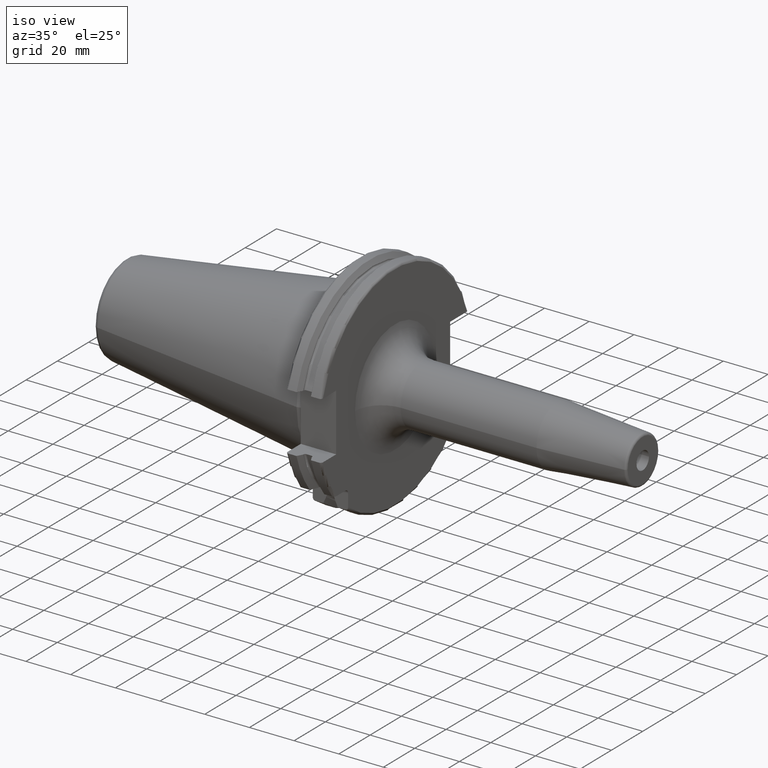
[diagram: clean part render]
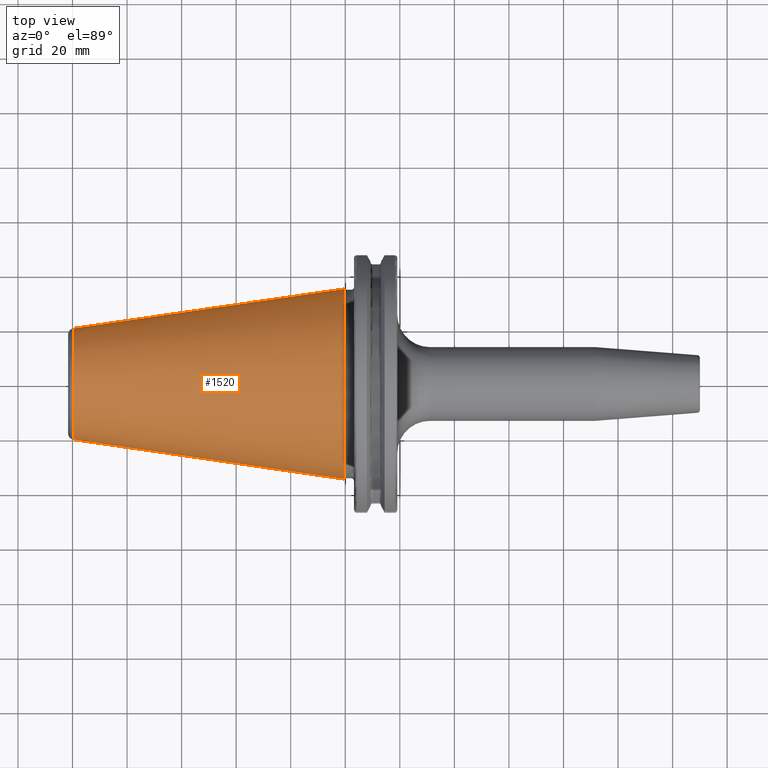
[diagram: tour spotlight — one face highlighted and labeled with its STEP entity id]
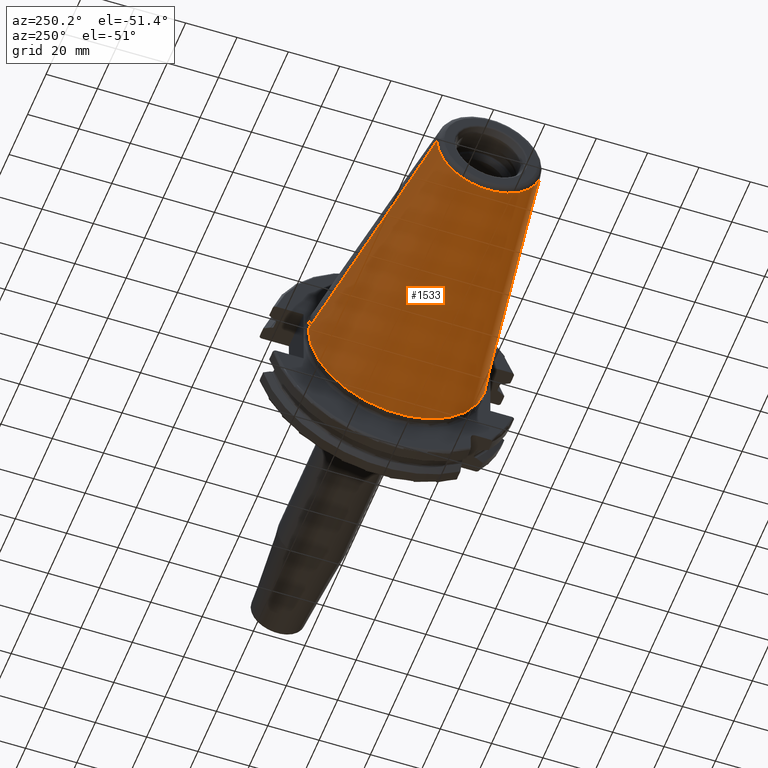
[diagram: tour spotlight — one face highlighted and labeled with its STEP entity id]
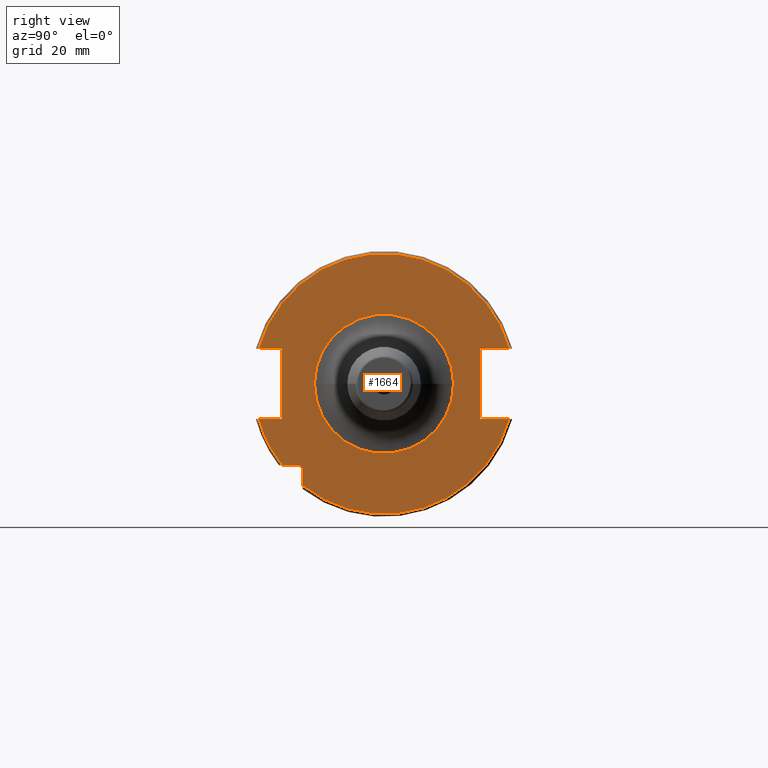
[diagram: tour spotlight — one face highlighted and labeled with its STEP entity id]
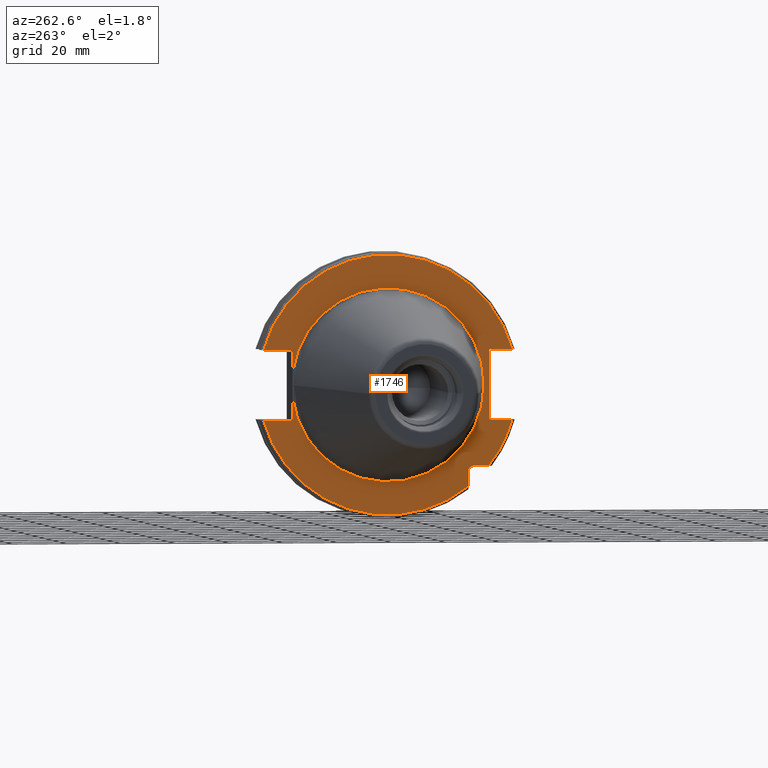
[diagram: tour spotlight — one face highlighted and labeled with its STEP entity id]
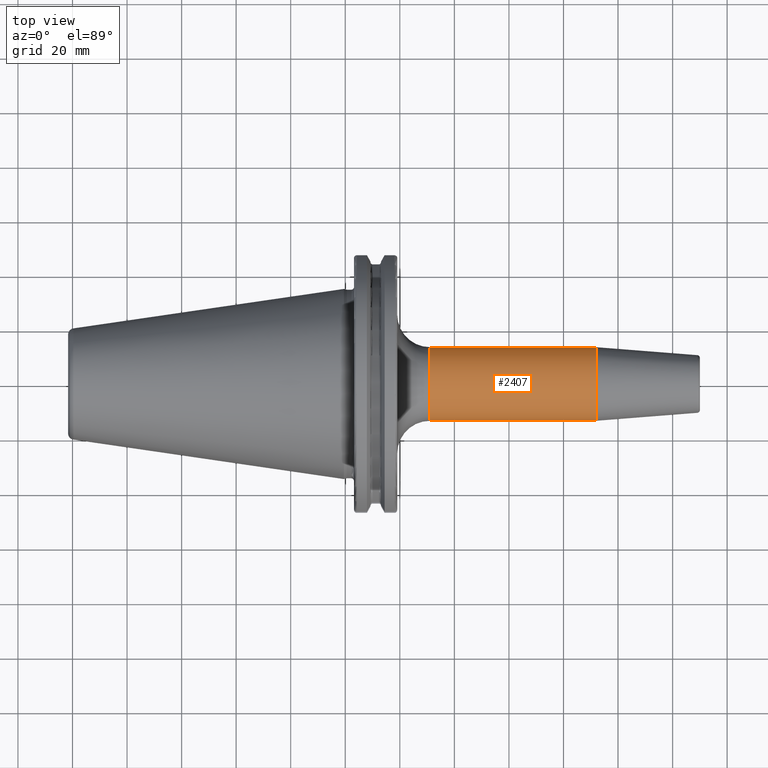
[diagram: tour spotlight — one face highlighted and labeled with its STEP entity id]
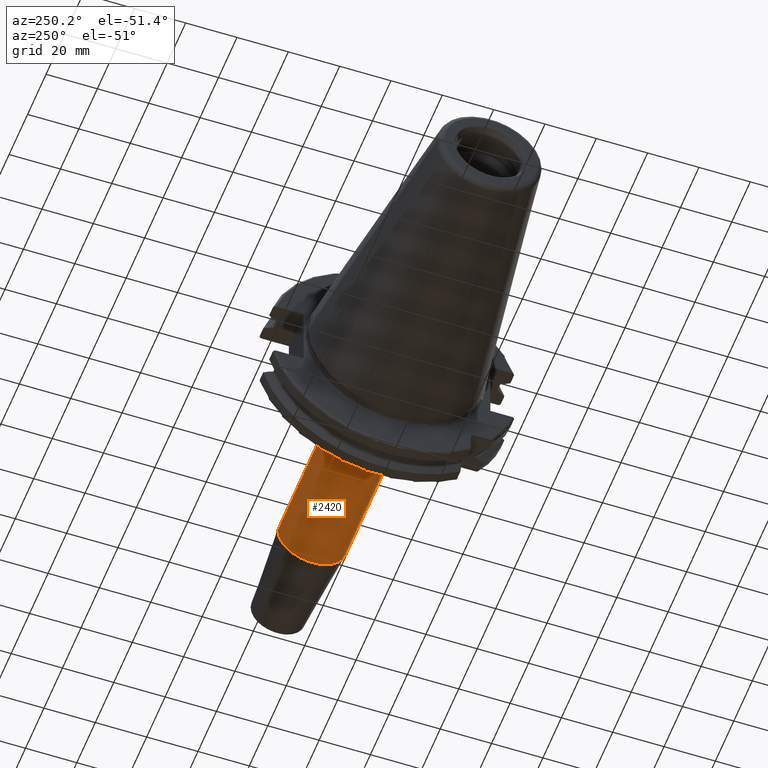
[diagram: tour spotlight — one face highlighted and labeled with its STEP entity id]
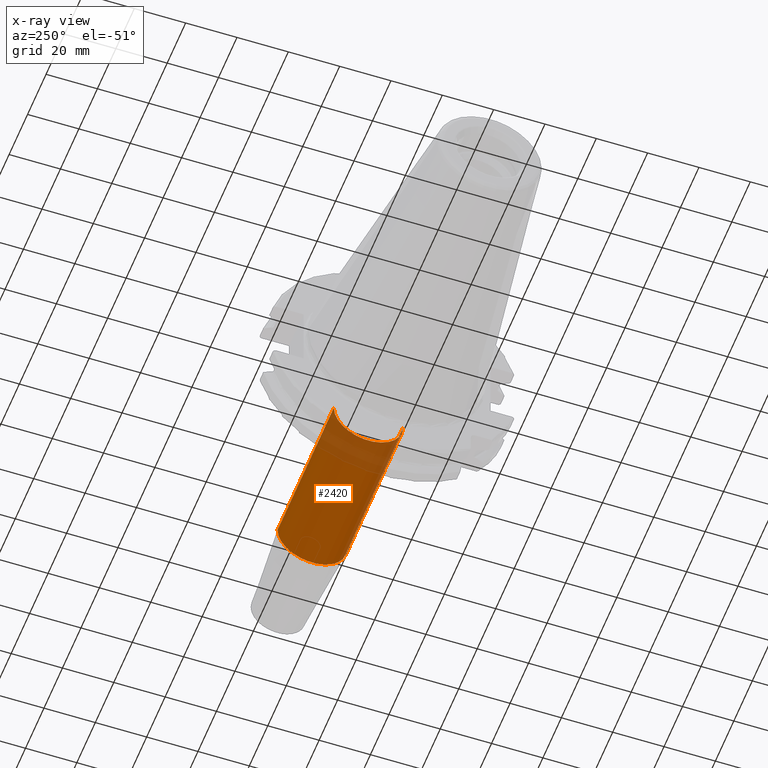
[diagram: x-ray of the same camera — body ghosted, this tour face saturated]
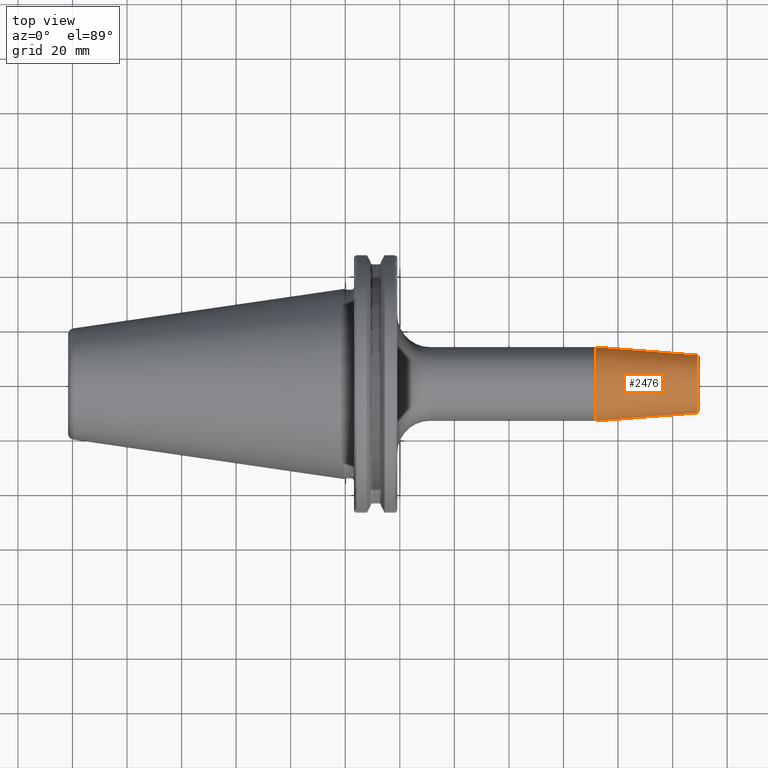
[diagram: tour spotlight — one face highlighted and labeled with its STEP entity id]
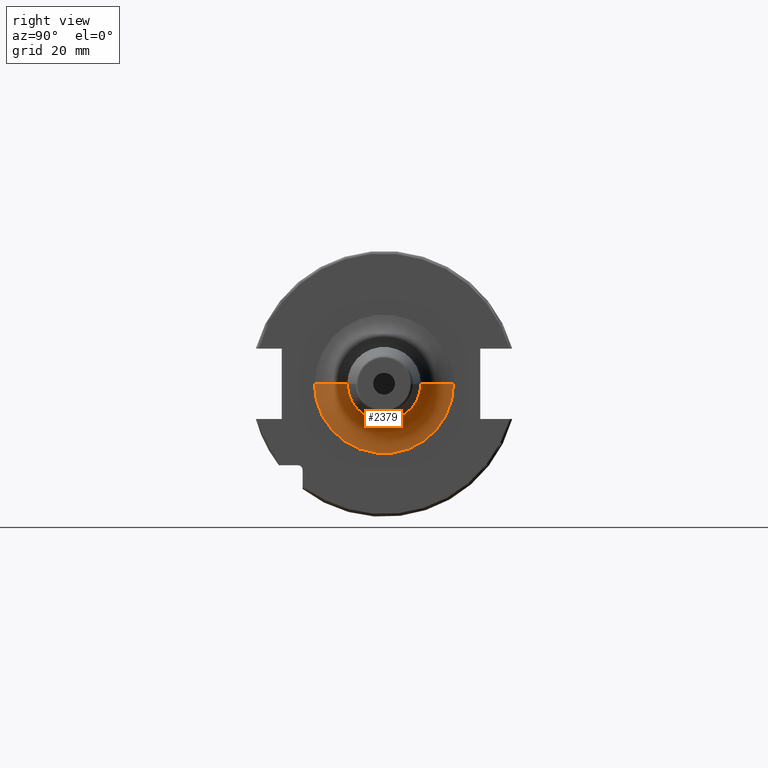
[diagram: tour spotlight — one face highlighted and labeled with its STEP entity id]
A machine part: a face-by-face anatomy tour. The part has 93 B-rep faces; the first image is the clean iso view, then the 8 largest visible faces are spotlighted one at a time (largest first), each with its STEP entity span.

Face 1 — top view, entity #1520. In plain terms, the highlighted conical surface has half-angle 8.298 deg.
Definition (entity closure, byte-faithful):
#37=CARTESIAN_POINT('',(-9.967471700563E1,0.E0,0.E0));
#38=DIRECTION('',(1.E0,0.E0,0.E0));
#39=DIRECTION('',(0.E0,1.E0,0.E0));
#40=AXIS2_PLACEMENT_3D('',#37,#38,#39);
#42=CARTESIAN_POINT('',(-4.896823332305E-1,0.E0,0.E0));
#43=DIRECTION('',(1.E0,0.E0,0.E0));
#44=DIRECTION('',(0.E0,1.E0,0.E0));
#45=AXIS2_PLACEMENT_3D('',#42,#43,#44);
#47=DIRECTION('',(-9.895312636440E-1,-1.443186691705E-1,0.E0));
#48=VECTOR('',#47,1.002343617797E2);
#49=CARTESIAN_POINT('',(-4.896823332305E-1,3.485358204157E1,0.E0));
#50=LINE('',#49,#48);
#51=DIRECTION('',(-9.895312636440E-1,1.443186691705E-1,0.E0));
#52=VECTOR('',#51,1.002343617797E2);
#53=CARTESIAN_POINT('',(-4.896823332305E-1,-3.485358204157E1,0.E0));
#54=LINE('',#53,#52);
#1206=CARTESIAN_POINT('',(-9.967471700563E1,2.038789234437E1,0.E0));
#1208=VERTEX_POINT('',#1206);
#1210=CARTESIAN_POINT('',(-9.967471700563E1,-2.038789234437E1,0.E0));
#1212=VERTEX_POINT('',#1210);
#1274=CARTESIAN_POINT('',(-4.896823332305E-1,3.485358204157E1,0.E0));
#1275=VERTEX_POINT('',#1274);
#1276=CARTESIAN_POINT('',(-4.896823332305E-1,-3.485358204157E1,0.E0));
#1277=VERTEX_POINT('',#1276);
#1506=CARTESIAN_POINT('',(-5.008219966943E1,0.E0,0.E0));
#1507=DIRECTION('',(1.E0,0.E0,0.E0));
#1508=DIRECTION('',(0.E0,-1.E0,0.E0));
#1509=AXIS2_PLACEMENT_3D('',#1506,#1507,#1508);
#1510=CONICAL_SURFACE('',#1509,2.762073719297E1,8.297826828206E0);
#1512=ORIENTED_EDGE('',*,*,#1511,.F.);
#1514=ORIENTED_EDGE('',*,*,#1513,.T.);
#1516=ORIENTED_EDGE('',*,*,#1515,.T.);
#1517=ORIENTED_EDGE('',*,*,#1499,.F.);
#1518=EDGE_LOOP('',(#1512,#1514,#1516,#1517));
#1519=FACE_OUTER_BOUND('',#1518,.F.);
#1520=ADVANCED_FACE('',(#1519),#1510,.T.);
#41=CIRCLE('',#40,2.038789234437E1);
#46=CIRCLE('',#45,3.485358204157E1);
#1499=EDGE_CURVE('',#1208,#1212,#41,.T.);
#1511=EDGE_CURVE('',#1275,#1208,#50,.T.);
#1513=EDGE_CURVE('',#1275,#1277,#46,.T.);
#1515=EDGE_CURVE('',#1277,#1212,#54,.T.);

Face 2 — auxiliary view, entity #1533. In plain terms, the highlighted conical surface has half-angle 8.298 deg.
Definition (entity closure, byte-faithful):
#32=CARTESIAN_POINT('',(-9.967471700563E1,0.E0,0.E0));
#33=DIRECTION('',(-1.E0,0.E0,0.E0));
#34=DIRECTION('',(0.E0,1.E0,0.E0));
#35=AXIS2_PLACEMENT_3D('',#32,#33,#34);
#47=DIRECTION('',(-9.895312636440E-1,-1.443186691705E-1,0.E0));
#48=VECTOR('',#47,1.002343617797E2);
#49=CARTESIAN_POINT('',(-4.896823332305E-1,3.485358204157E1,0.E0));
#50=LINE('',#49,#48);
#51=DIRECTION('',(-9.895312636440E-1,1.443186691705E-1,0.E0));
#52=VECTOR('',#51,1.002343617797E2);
#53=CARTESIAN_POINT('',(-4.896823332305E-1,-3.485358204157E1,0.E0));
#54=LINE('',#53,#52);
#55=CARTESIAN_POINT('',(-4.896823332305E-1,0.E0,0.E0));
#56=DIRECTION('',(-1.E0,0.E0,0.E0));
#57=DIRECTION('',(0.E0,1.E0,0.E0));
#58=AXIS2_PLACEMENT_3D('',#55,#56,#57);
#1206=CARTESIAN_POINT('',(-9.967471700563E1,2.038789234437E1,0.E0));
#1208=VERTEX_POINT('',#1206);
#1210=CARTESIAN_POINT('',(-9.967471700563E1,-2.038789234437E1,0.E0));
#1212=VERTEX_POINT('',#1210);
#1274=CARTESIAN_POINT('',(-4.896823332305E-1,3.485358204157E1,0.E0));
#1275=VERTEX_POINT('',#1274);
#1276=CARTESIAN_POINT('',(-4.896823332305E-1,-3.485358204157E1,0.E0));
#1277=VERTEX_POINT('',#1276);
#1521=CARTESIAN_POINT('',(-5.008219966943E1,0.E0,0.E0));
#1522=DIRECTION('',(1.E0,0.E0,0.E0));
#1523=DIRECTION('',(0.E0,-1.E0,0.E0));
#1524=AXIS2_PLACEMENT_3D('',#1521,#1522,#1523);
#1525=CONICAL_SURFACE('',#1524,2.762073719297E1,8.297826828206E0);
#1526=ORIENTED_EDGE('',*,*,#1511,.T.);
#1527=ORIENTED_EDGE('',*,*,#1488,.T.);
#1528=ORIENTED_EDGE('',*,*,#1515,.F.);
#1530=ORIENTED_EDGE('',*,*,#1529,.F.);
#1531=EDGE_LOOP('',(#1526,#1527,#1528,#1530));
#1532=FACE_OUTER_BOUND('',#1531,.F.);
#1533=ADVANCED_FACE('',(#1532),#1525,.T.);
#36=CIRCLE('',#35,2.038789234437E1);
#59=CIRCLE('',#58,3.485358204157E1);
#1488=EDGE_CURVE('',#1208,#1212,#36,.T.);
#1511=EDGE_CURVE('',#1275,#1208,#50,.T.);
#1515=EDGE_CURVE('',#1277,#1212,#54,.T.);
#1529=EDGE_CURVE('',#1275,#1277,#59,.T.);

Face 3 — right view, entity #1664. In plain terms, the highlighted planar face has unit normal (1, 0, 0).
Definition (entity closure, byte-faithful):
#126=DIRECTION('',(0.E0,0.E0,1.E0));
#127=VECTOR('',#126,5.653810627237E0);
#128=CARTESIAN_POINT('',(1.905E1,-2.985E1,-3.725381062724E1));
#129=LINE('',#128,#127);
#130=DIRECTION('',(0.E0,-1.E0,0.E0));
#131=VECTOR('',#130,5.653810627237E0);
#132=CARTESIAN_POINT('',(1.905E1,-3.16E1,-2.985E1));
#133=LINE('',#132,#131);
#134=DIRECTION('',(0.E0,1.E0,0.E0));
#135=VECTOR('',#134,8.461493733886E0);
#136=CARTESIAN_POINT('',(1.905E1,-4.596149373389E1,-1.29E1));
#137=LINE('',#136,#135);
#138=DIRECTION('',(0.E0,0.E0,1.E0));
#139=VECTOR('',#138,2.58E1);
#140=CARTESIAN_POINT('',(1.905E1,-3.75E1,-1.29E1));
#141=LINE('',#140,#139);
#142=DIRECTION('',(0.E0,1.E0,0.E0));
#143=VECTOR('',#142,8.461493733886E0);
#144=CARTESIAN_POINT('',(1.905E1,-4.596149373389E1,1.29E1));
#145=LINE('',#144,#143);
#146=DIRECTION('',(0.E0,-1.E0,0.E0));
#147=VECTOR('',#146,1.066149373389E1);
#148=CARTESIAN_POINT('',(1.905E1,4.596149373389E1,1.29E1));
#149=LINE('',#148,#147);
#150=DIRECTION('',(0.E0,0.E0,-1.E0));
#151=VECTOR('',#150,2.58E1);
#152=CARTESIAN_POINT('',(1.905E1,3.53E1,1.29E1));
#153=LINE('',#152,#151);
#154=DIRECTION('',(0.E0,-1.E0,0.E0));
#155=VECTOR('',#154,1.066149373389E1);
#156=CARTESIAN_POINT('',(1.905E1,4.596149373389E1,-1.29E1));
#157=LINE('',#156,#155);
#158=CARTESIAN_POINT('',(1.905E1,0.E0,0.E0));
#159=DIRECTION('',(1.E0,0.E0,0.E0));
#160=DIRECTION('',(0.E0,-1.E0,0.E0));
#161=AXIS2_PLACEMENT_3D('',#158,#159,#160);
#163=CARTESIAN_POINT('',(1.905E1,0.E0,0.E0));
#164=DIRECTION('',(1.E0,0.E0,0.E0));
#165=DIRECTION('',(0.E0,1.E0,0.E0));
#166=AXIS2_PLACEMENT_3D('',#163,#164,#165);
#172=CARTESIAN_POINT('',(1.905E1,-3.16E1,-3.16E1));
#173=DIRECTION('',(-1.E0,0.E0,0.E0));
#174=DIRECTION('',(0.E0,0.E0,1.E0));
#175=AXIS2_PLACEMENT_3D('',#172,#173,#174);
#545=CARTESIAN_POINT('',(1.905E1,0.E0,0.E0));
#546=DIRECTION('',(1.E0,0.E0,0.E0));
#547=DIRECTION('',(0.E0,9.627964123359E-1,2.702278083268E-1));
#548=AXIS2_PLACEMENT_3D('',#545,#546,#547);
#844=CARTESIAN_POINT('',(1.905E1,0.E0,0.E0));
#845=DIRECTION('',(-1.E0,0.E0,0.E0));
#846=DIRECTION('',(0.E0,9.627964123359E-1,-2.702278083268E-1));
#847=AXIS2_PLACEMENT_3D('',#844,#845,#846);
#860=CARTESIAN_POINT('',(1.905E1,0.E0,0.E0));
#861=DIRECTION('',(-1.E0,0.E0,0.E0));
#862=DIRECTION('',(0.E0,-7.803888060170E-1,-6.252945797329E-1));
#863=AXIS2_PLACEMENT_3D('',#860,#861,#862);
#874=CARTESIAN_POINT('',(1.905E1,-3.725381062724E1,-2.985E1));
#1328=CARTESIAN_POINT('',(1.905E1,4.596149373389E1,1.29E1));
#1329=CARTESIAN_POINT('',(1.905E1,3.53E1,1.29E1));
#1330=VERTEX_POINT('',#1328);
#1331=VERTEX_POINT('',#1329);
#1332=CARTESIAN_POINT('',(1.905E1,3.53E1,-1.29E1));
#1333=VERTEX_POINT('',#1332);
#1334=CARTESIAN_POINT('',(1.905E1,4.596149373389E1,-1.29E1));
#1335=VERTEX_POINT('',#1334);
#1336=CARTESIAN_POINT('',(1.905E1,-4.596149373389E1,-1.29E1));
#1337=CARTESIAN_POINT('',(1.905E1,-3.75E1,-1.29E1));
#1338=VERTEX_POINT('',#1336);
#1339=VERTEX_POINT('',#1337);
#1340=CARTESIAN_POINT('',(1.905E1,-3.75E1,1.29E1));
#1341=VERTEX_POINT('',#1340);
#1342=CARTESIAN_POINT('',(1.905E1,-4.596149373389E1,1.29E1));
#1343=VERTEX_POINT('',#1342);
#1397=CARTESIAN_POINT('',(1.905E1,-2.985E1,-3.725381062724E1));
#1398=VERTEX_POINT('',#1397);
#1405=CARTESIAN_POINT('',(1.905E1,-3.16E1,-2.985E1));
#1406=CARTESIAN_POINT('',(1.905E1,-2.985E1,-3.16E1));
#1407=VERTEX_POINT('',#1405);
#1408=VERTEX_POINT('',#1406);
#1430=VERTEX_POINT('',#874);
#1444=CARTESIAN_POINT('',(1.905E1,-2.55E1,-2.889424837800E-14));
#1445=CARTESIAN_POINT('',(1.905E1,2.55E1,1.444712418900E-14));
#1446=VERTEX_POINT('',#1444);
#1447=VERTEX_POINT('',#1445);
#1628=CARTESIAN_POINT('',(1.905E1,0.E0,0.E0));
#1629=DIRECTION('',(1.E0,0.E0,0.E0));
#1630=DIRECTION('',(0.E0,-1.E0,0.E0));
#1631=AXIS2_PLACEMENT_3D('',#1628,#1629,#1630);
#1632=PLANE('',#1631);
#1634=ORIENTED_EDGE('',*,*,#1633,.T.);
#1636=ORIENTED_EDGE('',*,*,#1635,.F.);
#1638=ORIENTED_EDGE('',*,*,#1637,.T.);
#1640=ORIENTED_EDGE('',*,*,#1639,.T.);
#1642=ORIENTED_EDGE('',*,*,#1641,.T.);
#1644=ORIENTED_EDGE('',*,*,#1643,.T.);
#1646=ORIENTED_EDGE('',*,*,#1645,.F.);
#1648=ORIENTED_EDGE('',*,*,#1647,.F.);
#1650=ORIENTED_EDGE('',*,*,#1649,.T.);
#1651=ORIENTED_EDGE('',*,*,#1612,.T.);
#1653=ORIENTED_EDGE('',*,*,#1652,.F.);
#1655=ORIENTED_EDGE('',*,*,#1654,.T.);
#1656=EDGE_LOOP('',(#1634,#1636,#1638,#1640,#1642,#1644,#1646,#1648,#1650,#1651,
#1653,#1655));
#1657=FACE_OUTER_BOUND('',#1656,.F.);
#1659=ORIENTED_EDGE('',*,*,#1658,.T.);
#1661=ORIENTED_EDGE('',*,*,#1660,.T.);
#1662=EDGE_LOOP('',(#1659,#1661));
#1663=FACE_BOUND('',#1662,.F.);
#1664=ADVANCED_FACE('',(#1657,#1663),#1632,.T.);
#162=CIRCLE('',#161,2.55E1);
#167=CIRCLE('',#166,2.55E1);
#176=CIRCLE('',#175,1.75E0);
#549=CIRCLE('',#548,4.77375E1);
#848=CIRCLE('',#847,4.77375E1);
#864=CIRCLE('',#863,4.77375E1);
#1612=EDGE_CURVE('',#1331,#1333,#153,.T.);
#1633=EDGE_CURVE('',#1398,#1408,#129,.T.);
#1635=EDGE_CURVE('',#1407,#1408,#176,.T.);
#1637=EDGE_CURVE('',#1407,#1430,#133,.T.);
#1639=EDGE_CURVE('',#1430,#1338,#864,.T.);
#1641=EDGE_CURVE('',#1338,#1339,#137,.T.);
#1643=EDGE_CURVE('',#1339,#1341,#141,.T.);
#1645=EDGE_CURVE('',#1343,#1341,#145,.T.);
#1647=EDGE_CURVE('',#1330,#1343,#549,.T.);
#1649=EDGE_CURVE('',#1330,#1331,#149,.T.);
#1652=EDGE_CURVE('',#1335,#1333,#157,.T.);
#1654=EDGE_CURVE('',#1335,#1398,#848,.T.);
#1658=EDGE_CURVE('',#1446,#1447,#162,.T.);
#1660=EDGE_CURVE('',#1447,#1446,#167,.T.);

Face 4 — auxiliary view, entity #1746. In plain terms, the highlighted planar face has unit normal (1, 0, 0).
Definition (entity closure, byte-faithful):
#117=CARTESIAN_POINT('',(3.2E0,0.E0,0.E0));
#118=DIRECTION('',(-1.E0,0.E0,0.E0));
#119=DIRECTION('',(0.E0,9.922698524245E-1,-1.240989120402E-1));
#120=AXIS2_PLACEMENT_3D('',#117,#118,#119);
#177=CARTESIAN_POINT('',(3.2E0,-3.16E1,-3.16E1));
#178=DIRECTION('',(1.E0,0.E0,0.E0));
#179=DIRECTION('',(0.E0,1.E0,0.E0));
#180=AXIS2_PLACEMENT_3D('',#177,#178,#179);
#182=DIRECTION('',(0.E0,-1.E0,0.E0));
#183=VECTOR('',#182,5.653810627237E0);
#184=CARTESIAN_POINT('',(3.2E0,-3.16E1,-2.985E1));
#185=LINE('',#184,#183);
#186=DIRECTION('',(0.E0,0.E0,1.E0));
#187=VECTOR('',#186,5.653810627237E0);
#188=CARTESIAN_POINT('',(3.2E0,-2.985E1,-3.725381062724E1));
#189=LINE('',#188,#187);
#190=CARTESIAN_POINT('',(3.2E0,0.E0,0.E0));
#191=DIRECTION('',(-1.E0,0.E0,0.E0));
#192=DIRECTION('',(0.E0,9.627964123359E-1,-2.702278083268E-1));
#193=AXIS2_PLACEMENT_3D('',#190,#191,#192);
#195=DIRECTION('',(0.E0,-1.E0,0.E0));
#196=VECTOR('',#195,1.066149373389E1);
#197=CARTESIAN_POINT('',(3.2E0,4.596149373389E1,-1.29E1));
#198=LINE('',#197,#196);
#199=DIRECTION('',(0.E0,0.E0,-1.E0));
#200=VECTOR('',#199,8.485181204172E0);
#201=CARTESIAN_POINT('',(3.2E0,3.53E1,-4.414818795828E0));
#202=LINE('',#201,#200);
#203=DIRECTION('',(0.E0,0.E0,-1.E0));
#204=VECTOR('',#203,8.485181204172E0);
#205=CARTESIAN_POINT('',(3.2E0,3.53E1,1.29E1));
#206=LINE('',#205,#204);
#207=DIRECTION('',(0.E0,-1.E0,0.E0));
#208=VECTOR('',#207,1.066149373389E1);
#209=CARTESIAN_POINT('',(3.2E0,4.596149373389E1,1.29E1));
#210=LINE('',#209,#208);
#211=CARTESIAN_POINT('',(3.2E0,0.E0,0.E0));
#212=DIRECTION('',(1.E0,0.E0,0.E0));
#213=DIRECTION('',(0.E0,9.627964123359E-1,2.702278083268E-1));
#214=AXIS2_PLACEMENT_3D('',#211,#212,#213);
#216=DIRECTION('',(0.E0,1.E0,0.E0));
#217=VECTOR('',#216,8.461493733886E0);
#218=CARTESIAN_POINT('',(3.2E0,-4.596149373389E1,1.29E1));
#219=LINE('',#218,#217);
#220=DIRECTION('',(0.E0,0.E0,1.E0));
#221=VECTOR('',#220,2.58E1);
#222=CARTESIAN_POINT('',(3.2E0,-3.75E1,-1.29E1));
#223=LINE('',#222,#221);
#224=DIRECTION('',(0.E0,1.E0,0.E0));
#225=VECTOR('',#224,8.461493733886E0);
#226=CARTESIAN_POINT('',(3.2E0,-4.596149373389E1,-1.29E1));
#227=LINE('',#226,#225);
#228=CARTESIAN_POINT('',(3.2E0,0.E0,0.E0));
#229=DIRECTION('',(-1.E0,0.E0,0.E0));
#230=DIRECTION('',(0.E0,-7.803888060170E-1,-6.252945797329E-1));
#231=AXIS2_PLACEMENT_3D('',#228,#229,#230);
#279=CARTESIAN_POINT('',(3.2E0,-3.725381062724E1,-2.985E1));
#891=CARTESIAN_POINT('',(3.2E0,0.E0,0.E0));
#892=DIRECTION('',(1.E0,0.E0,0.E0));
#893=DIRECTION('',(0.E0,9.922698524245E-1,1.240989120402E-1));
#894=AXIS2_PLACEMENT_3D('',#891,#892,#893);
#1218=CARTESIAN_POINT('',(3.2E0,-3.5575E1,0.E0));
#1220=VERTEX_POINT('',#1218);
#1352=CARTESIAN_POINT('',(3.2E0,4.596149373389E1,1.29E1));
#1353=CARTESIAN_POINT('',(3.2E0,3.53E1,1.29E1));
#1354=VERTEX_POINT('',#1352);
#1355=VERTEX_POINT('',#1353);
#1356=CARTESIAN_POINT('',(3.2E0,3.53E1,4.414818795828E0));
#1357=VERTEX_POINT('',#1356);
#1358=CARTESIAN_POINT('',(3.2E0,3.53E1,-4.414818795828E0));
#1359=CARTESIAN_POINT('',(3.2E0,3.53E1,-1.29E1));
#1360=VERTEX_POINT('',#1358);
#1361=VERTEX_POINT('',#1359);
#1362=CARTESIAN_POINT('',(3.2E0,4.596149373389E1,-1.29E1));
#1363=VERTEX_POINT('',#1362);
#1364=CARTESIAN_POINT('',(3.2E0,-4.596149373389E1,-1.29E1));
#1365=CARTESIAN_POINT('',(3.2E0,-3.75E1,-1.29E1));
#1366=VERTEX_POINT('',#1364);
#1367=VERTEX_POINT('',#1365);
#1368=CARTESIAN_POINT('',(3.2E0,-3.75E1,1.29E1));
#1369=VERTEX_POINT('',#1368);
#1370=CARTESIAN_POINT('',(3.2E0,-4.596149373389E1,1.29E1));
#1371=VERTEX_POINT('',#1370);
#1403=CARTESIAN_POINT('',(3.2E0,-2.985E1,-3.725381062724E1));
#1404=VERTEX_POINT('',#1403);
#1409=CARTESIAN_POINT('',(3.2E0,-2.985E1,-3.16E1));
#1410=CARTESIAN_POINT('',(3.2E0,-3.16E1,-2.985E1));
#1411=VERTEX_POINT('',#1409);
#1412=VERTEX_POINT('',#1410);
#1431=VERTEX_POINT('',#279);
#1714=CARTESIAN_POINT('',(3.2E0,0.E0,0.E0));
#1715=DIRECTION('',(1.E0,0.E0,0.E0));
#1716=DIRECTION('',(0.E0,-1.E0,0.E0));
#1717=AXIS2_PLACEMENT_3D('',#1714,#1715,#1716);
#1718=PLANE('',#1717);
#1720=ORIENTED_EDGE('',*,*,#1719,.F.);
#1721=ORIENTED_EDGE('',*,*,#1707,.F.);
#1722=ORIENTED_EDGE('',*,*,#1695,.F.);
#1724=ORIENTED_EDGE('',*,*,#1723,.F.);
#1726=ORIENTED_EDGE('',*,*,#1725,.T.);
#1727=ORIENTED_EDGE('',*,*,#1621,.F.);
#1728=ORIENTED_EDGE('',*,*,#1602,.T.);
#1730=ORIENTED_EDGE('',*,*,#1729,.F.);
#1731=ORIENTED_EDGE('',*,*,#1616,.F.);
#1733=ORIENTED_EDGE('',*,*,#1732,.F.);
#1735=ORIENTED_EDGE('',*,*,#1734,.T.);
#1737=ORIENTED_EDGE('',*,*,#1736,.T.);
#1739=ORIENTED_EDGE('',*,*,#1738,.F.);
#1741=ORIENTED_EDGE('',*,*,#1740,.F.);
#1743=ORIENTED_EDGE('',*,*,#1742,.F.);
#1744=EDGE_LOOP('',(#1720,#1721,#1722,#1724,#1726,#1727,#1728,#1730,#1731,#1733,
#1735,#1737,#1739,#1741,#1743));
#1745=FACE_OUTER_BOUND('',#1744,.F.);
#1746=ADVANCED_FACE('',(#1745),#1718,.F.);
#121=CIRCLE('',#120,3.5575E1);
#181=CIRCLE('',#180,1.75E0);
#194=CIRCLE('',#193,4.77375E1);
#215=CIRCLE('',#214,4.77375E1);
#232=CIRCLE('',#231,4.77375E1);
#895=CIRCLE('',#894,3.5575E1);
#1602=EDGE_CURVE('',#1360,#1220,#121,.T.);
#1616=EDGE_CURVE('',#1355,#1357,#206,.T.);
#1621=EDGE_CURVE('',#1360,#1361,#202,.T.);
#1695=EDGE_CURVE('',#1404,#1411,#189,.T.);
#1707=EDGE_CURVE('',#1411,#1412,#181,.T.);
#1719=EDGE_CURVE('',#1412,#1431,#185,.T.);
#1723=EDGE_CURVE('',#1363,#1404,#194,.T.);
#1725=EDGE_CURVE('',#1363,#1361,#198,.T.);
#1729=EDGE_CURVE('',#1357,#1220,#895,.T.);
#1732=EDGE_CURVE('',#1354,#1355,#210,.T.);
#1734=EDGE_CURVE('',#1354,#1371,#215,.T.);
#1736=EDGE_CURVE('',#1371,#1369,#219,.T.);
#1738=EDGE_CURVE('',#1367,#1369,#223,.T.);
#1740=EDGE_CURVE('',#1366,#1367,#227,.T.);
#1742=EDGE_CURVE('',#1431,#1366,#232,.T.);

Face 5 — top view, entity #2407. In plain terms, the highlighted cylindrical surface (partial cylindrical patch) has radius 13.5 mm, axis along (1, 0, 0).
Definition (entity closure, byte-faithful):
#906=CARTESIAN_POINT('',(3.105E1,0.E0,0.E0));
#907=DIRECTION('',(1.E0,0.E0,0.E0));
#908=DIRECTION('',(0.E0,1.E0,0.E0));
#909=AXIS2_PLACEMENT_3D('',#906,#907,#908);
#911=CARTESIAN_POINT('',(9.188138579148E1,0.E0,0.E0));
#912=DIRECTION('',(1.E0,0.E0,0.E0));
#913=DIRECTION('',(0.E0,1.E0,0.E0));
#914=AXIS2_PLACEMENT_3D('',#911,#912,#913);
#921=DIRECTION('',(-1.E0,0.E0,-2.879118352268E-14));
#922=VECTOR('',#921,6.083138579148E1);
#923=CARTESIAN_POINT('',(9.188138579148E1,-1.35E1,0.E0));
#924=LINE('',#923,#922);
#930=DIRECTION('',(-1.E0,0.E0,2.873499773453E-14));
#931=VECTOR('',#930,6.083138579148E1);
#932=CARTESIAN_POINT('',(9.188138579148E1,1.35E1,0.E0));
#933=LINE('',#932,#931);
#1432=CARTESIAN_POINT('',(9.188138579148E1,1.35E1,0.E0));
#1433=CARTESIAN_POINT('',(9.188138579148E1,-1.35E1,0.E0));
#1434=VERTEX_POINT('',#1432);
#1435=VERTEX_POINT('',#1433);
#1448=CARTESIAN_POINT('',(3.105E1,-1.35E1,0.E0));
#1449=CARTESIAN_POINT('',(3.105E1,1.35E1,0.E0));
#1450=VERTEX_POINT('',#1448);
#1451=VERTEX_POINT('',#1449);
#2393=CARTESIAN_POINT('',(1.35025E1,0.E0,0.E0));
#2394=DIRECTION('',(1.E0,0.E0,0.E0));
#2395=DIRECTION('',(0.E0,-1.E0,0.E0));
#2396=AXIS2_PLACEMENT_3D('',#2393,#2394,#2395);
#2397=CYLINDRICAL_SURFACE('',#2396,1.35E1);
#2398=ORIENTED_EDGE('',*,*,#2387,.F.);
#2400=ORIENTED_EDGE('',*,*,#2399,.F.);
#2402=ORIENTED_EDGE('',*,*,#2401,.T.);
#2404=ORIENTED_EDGE('',*,*,#2403,.T.);
#2405=EDGE_LOOP('',(#2398,#2400,#2402,#2404));
#2406=FACE_OUTER_BOUND('',#2405,.F.);
#2407=ADVANCED_FACE('',(#2406),#2397,.T.);
#910=CIRCLE('',#909,1.35E1);
#915=CIRCLE('',#914,1.35E1);
#2387=EDGE_CURVE('',#1451,#1450,#910,.T.);
#2399=EDGE_CURVE('',#1434,#1451,#933,.T.);
#2401=EDGE_CURVE('',#1434,#1435,#915,.T.);
#2403=EDGE_CURVE('',#1435,#1450,#924,.T.);

Face 6 — auxiliary view, entity #2420. An x-ray twin of the same camera follows (body ghosted, this face saturated) — the face is partly hidden behind the body. In plain terms, the highlighted cylindrical surface (partial cylindrical patch) has radius 13.5 mm, axis along (1, 0, 0).
Definition (entity closure, byte-faithful):
#916=CARTESIAN_POINT('',(3.105E1,0.E0,0.E0));
#917=DIRECTION('',(1.E0,0.E0,0.E0));
#918=DIRECTION('',(0.E0,-1.E0,0.E0));
#919=AXIS2_PLACEMENT_3D('',#916,#917,#918);
#921=DIRECTION('',(-1.E0,0.E0,-2.879118352268E-14));
#922=VECTOR('',#921,6.083138579148E1);
#923=CARTESIAN_POINT('',(9.188138579148E1,-1.35E1,0.E0));
#924=LINE('',#923,#922);
#925=CARTESIAN_POINT('',(9.188138579148E1,0.E0,0.E0));
#926=DIRECTION('',(-1.E0,0.E0,0.E0));
#927=DIRECTION('',(0.E0,1.E0,0.E0));
#928=AXIS2_PLACEMENT_3D('',#925,#926,#927);
#930=DIRECTION('',(-1.E0,0.E0,2.873499773453E-14));
#931=VECTOR('',#930,6.083138579148E1);
#932=CARTESIAN_POINT('',(9.188138579148E1,1.35E1,0.E0));
#933=LINE('',#932,#931);
#1432=CARTESIAN_POINT('',(9.188138579148E1,1.35E1,0.E0));
#1433=CARTESIAN_POINT('',(9.188138579148E1,-1.35E1,0.E0));
#1434=VERTEX_POINT('',#1432);
#1435=VERTEX_POINT('',#1433);
#1448=CARTESIAN_POINT('',(3.105E1,-1.35E1,0.E0));
#1449=CARTESIAN_POINT('',(3.105E1,1.35E1,0.E0));
#1450=VERTEX_POINT('',#1448);
#1451=VERTEX_POINT('',#1449);
#2408=CARTESIAN_POINT('',(1.35025E1,0.E0,0.E0));
#2409=DIRECTION('',(1.E0,0.E0,0.E0));
#2410=DIRECTION('',(0.E0,-1.E0,0.E0));
#2411=AXIS2_PLACEMENT_3D('',#2408,#2409,#2410);
#2412=CYLINDRICAL_SURFACE('',#2411,1.35E1);
#2413=ORIENTED_EDGE('',*,*,#2373,.F.);
#2414=ORIENTED_EDGE('',*,*,#2403,.F.);
#2416=ORIENTED_EDGE('',*,*,#2415,.F.);
#2417=ORIENTED_EDGE('',*,*,#2399,.T.);
#2418=EDGE_LOOP('',(#2413,#2414,#2416,#2417));
#2419=FACE_OUTER_BOUND('',#2418,.F.);
#2420=ADVANCED_FACE('',(#2419),#2412,.T.);
#920=CIRCLE('',#919,1.35E1);
#929=CIRCLE('',#928,1.35E1);
#2373=EDGE_CURVE('',#1450,#1451,#920,.T.);
#2399=EDGE_CURVE('',#1434,#1451,#933,.T.);
#2403=EDGE_CURVE('',#1435,#1450,#924,.T.);
#2415=EDGE_CURVE('',#1434,#1435,#929,.T.);

Face 7 — top view, entity #2476. In plain terms, the highlighted conical surface has half-angle 4.5 deg.
Definition (entity closure, byte-faithful):
#911=CARTESIAN_POINT('',(9.188138579148E1,0.E0,0.E0));
#912=DIRECTION('',(1.E0,0.E0,0.E0));
#913=DIRECTION('',(0.E0,1.E0,0.E0));
#914=AXIS2_PLACEMENT_3D('',#911,#912,#913);
#939=DIRECTION('',(-9.969173337331E-1,7.845909572785E-2,1.680001370298E-13));
#940=VECTOR('',#939,3.731209403789E1);
#941=CARTESIAN_POINT('',(1.290784590957E2,1.057252684207E1,
-6.266783638056E-12));
#942=LINE('',#941,#940);
#943=DIRECTION('',(-9.969173337331E-1,-7.845909572785E-2,-1.679914618191E-13));
#944=VECTOR('',#943,3.731209403789E1);
#945=CARTESIAN_POINT('',(1.290784590957E2,-1.057252684207E1,
6.266459947777E-12));
#946=LINE('',#945,#944);
#957=CARTESIAN_POINT('',(1.290784590957E2,0.E0,0.E0));
#958=DIRECTION('',(-1.E0,0.E0,0.E0));
#959=DIRECTION('',(0.E0,-1.E0,0.E0));
#960=AXIS2_PLACEMENT_3D('',#957,#958,#959);
#1432=CARTESIAN_POINT('',(9.188138579148E1,1.35E1,0.E0));
#1433=CARTESIAN_POINT('',(9.188138579148E1,-1.35E1,0.E0));
#1434=VERTEX_POINT('',#1432);
#1435=VERTEX_POINT('',#1433);
#1436=CARTESIAN_POINT('',(1.290784590957E2,1.057252684207E1,0.E0));
#1437=CARTESIAN_POINT('',(1.290784590957E2,-1.057252684207E1,0.E0));
#1438=VERTEX_POINT('',#1436);
#1439=VERTEX_POINT('',#1437);
#2465=CARTESIAN_POINT('',(1.104799224436E2,0.E0,0.E0));
#2466=DIRECTION('',(-1.E0,0.E0,0.E0));
#2467=DIRECTION('',(0.E0,1.E0,0.E0));
#2468=AXIS2_PLACEMENT_3D('',#2465,#2466,#2467);
#2469=CONICAL_SURFACE('',#2468,1.203626342104E1,4.5E0);
#2470=ORIENTED_EDGE('',*,*,#2456,.F.);
#2471=ORIENTED_EDGE('',*,*,#2431,.T.);
#2472=ORIENTED_EDGE('',*,*,#2401,.F.);
#2473=ORIENTED_EDGE('',*,*,#2428,.F.);
#2474=EDGE_LOOP('',(#2470,#2471,#2472,#2473));
#2475=FACE_OUTER_BOUND('',#2474,.F.);
#2476=ADVANCED_FACE('',(#2475),#2469,.T.);
#915=CIRCLE('',#914,1.35E1);
#961=CIRCLE('',#960,1.057252684207E1);
#2401=EDGE_CURVE('',#1434,#1435,#915,.T.);
#2428=EDGE_CURVE('',#1438,#1434,#942,.T.);
#2431=EDGE_CURVE('',#1439,#1435,#946,.T.);
#2456=EDGE_CURVE('',#1439,#1438,#961,.T.);

Face 8 — right view, entity #2379. In plain terms, the highlighted toroidal blend (fillet) surface has major radius 25.5 mm and minor (blend) radius 12 mm.
Definition (entity closure, byte-faithful):
#158=CARTESIAN_POINT('',(1.905E1,0.E0,0.E0));
#159=DIRECTION('',(1.E0,0.E0,0.E0));
#160=DIRECTION('',(0.E0,-1.E0,0.E0));
#161=AXIS2_PLACEMENT_3D('',#158,#159,#160);
#896=CARTESIAN_POINT('',(3.105E1,-2.55E1,1.131289506517E-11));
#897=DIRECTION('',(0.E0,-4.436433859167E-13,-1.E0));
#898=DIRECTION('',(-1.E0,2.102022259957E-14,0.E0));
#899=AXIS2_PLACEMENT_3D('',#896,#897,#898);
#901=CARTESIAN_POINT('',(3.105E1,2.55E1,-1.132755000910E-11));
#902=DIRECTION('',(0.E0,4.442193141108E-13,1.E0));
#903=DIRECTION('',(-1.E0,-2.102022259957E-14,0.E0));
#904=AXIS2_PLACEMENT_3D('',#901,#902,#903);
#916=CARTESIAN_POINT('',(3.105E1,0.E0,0.E0));
#917=DIRECTION('',(1.E0,0.E0,0.E0));
#918=DIRECTION('',(0.E0,-1.E0,0.E0));
#919=AXIS2_PLACEMENT_3D('',#916,#917,#918);
#1444=CARTESIAN_POINT('',(1.905E1,-2.55E1,-2.889424837800E-14));
#1445=CARTESIAN_POINT('',(1.905E1,2.55E1,1.444712418900E-14));
#1446=VERTEX_POINT('',#1444);
#1447=VERTEX_POINT('',#1445);
#1448=CARTESIAN_POINT('',(3.105E1,-1.35E1,0.E0));
#1449=CARTESIAN_POINT('',(3.105E1,1.35E1,0.E0));
#1450=VERTEX_POINT('',#1448);
#1451=VERTEX_POINT('',#1449);
#2365=CARTESIAN_POINT('',(3.105E1,0.E0,0.E0));
#2366=DIRECTION('',(1.E0,0.E0,0.E0));
#2367=DIRECTION('',(0.E0,-9.999351321202E-1,1.138997593464E-2));
#2368=AXIS2_PLACEMENT_3D('',#2365,#2366,#2367);
#2369=TOROIDAL_SURFACE('',#2368,2.55E1,1.2E1);
#2370=ORIENTED_EDGE('',*,*,#1658,.F.);
#2372=ORIENTED_EDGE('',*,*,#2371,.T.);
#2374=ORIENTED_EDGE('',*,*,#2373,.T.);
#2376=ORIENTED_EDGE('',*,*,#2375,.F.);
#2377=EDGE_LOOP('',(#2370,#2372,#2374,#2376));
#2378=FACE_OUTER_BOUND('',#2377,.F.);
#2379=ADVANCED_FACE('',(#2378),#2369,.F.);
#162=CIRCLE('',#161,2.55E1);
#900=CIRCLE('',#899,1.2E1);
#905=CIRCLE('',#904,1.2E1);
#920=CIRCLE('',#919,1.35E1);
#1658=EDGE_CURVE('',#1446,#1447,#162,.T.);
#2371=EDGE_CURVE('',#1446,#1450,#900,.T.);
#2373=EDGE_CURVE('',#1450,#1451,#920,.T.);
#2375=EDGE_CURVE('',#1447,#1451,#905,.T.);